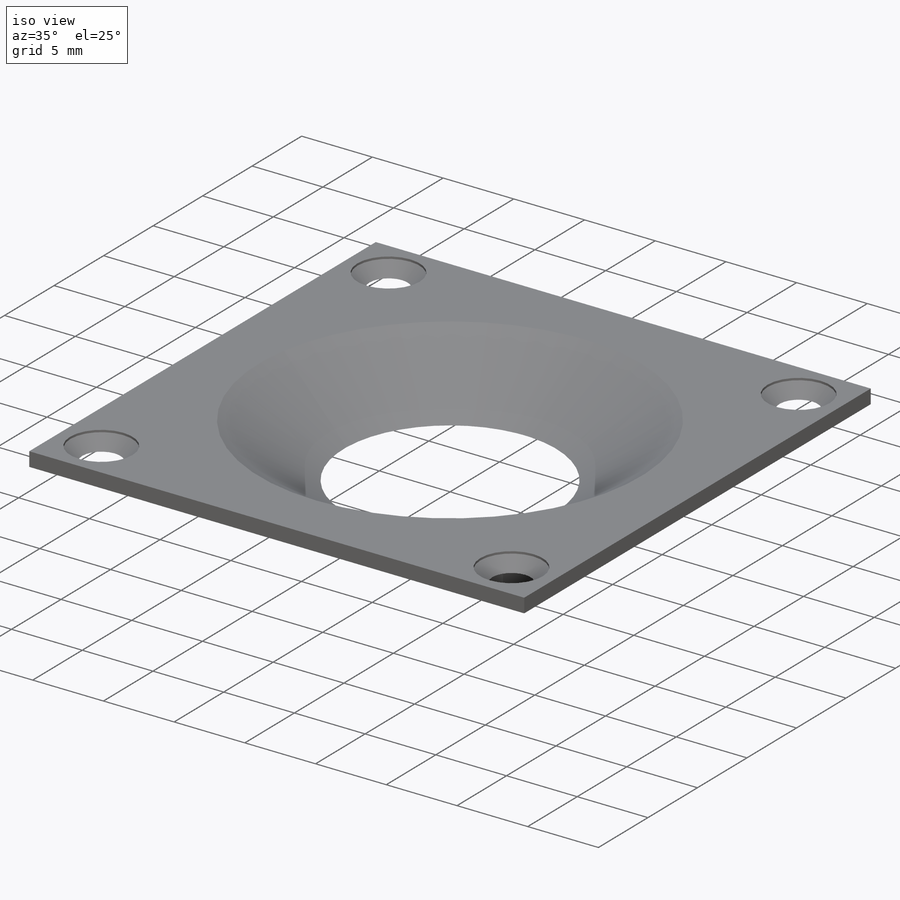
[diagram: iso view]
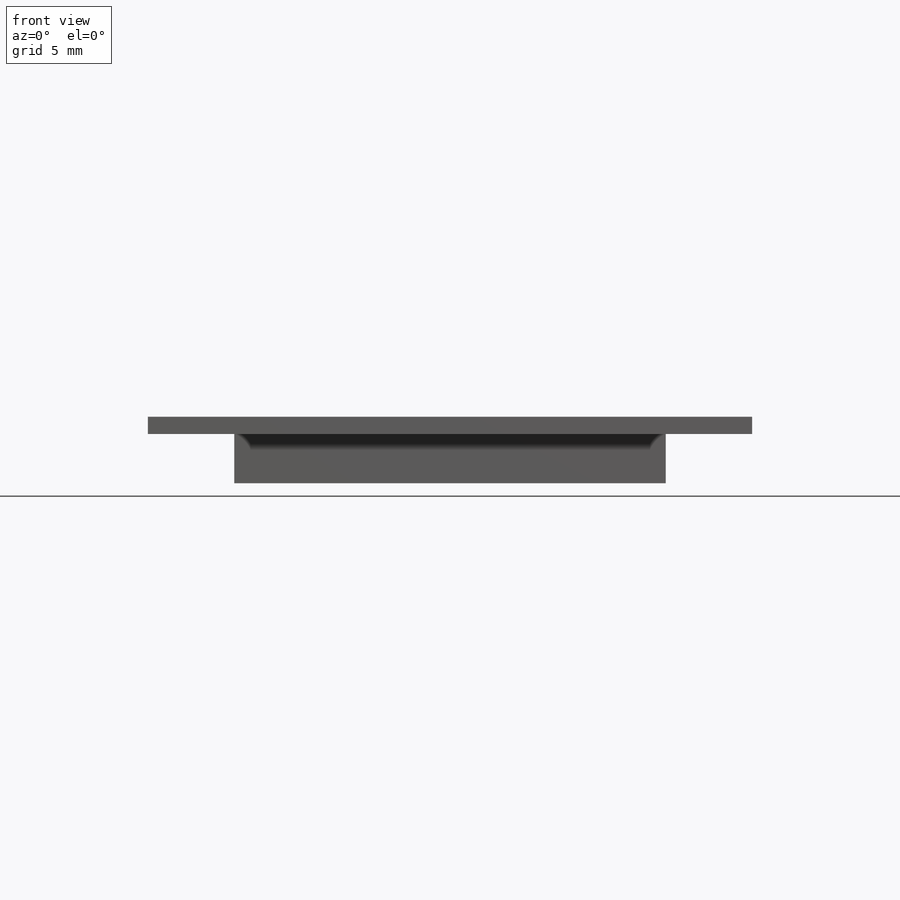
[diagram: front view]
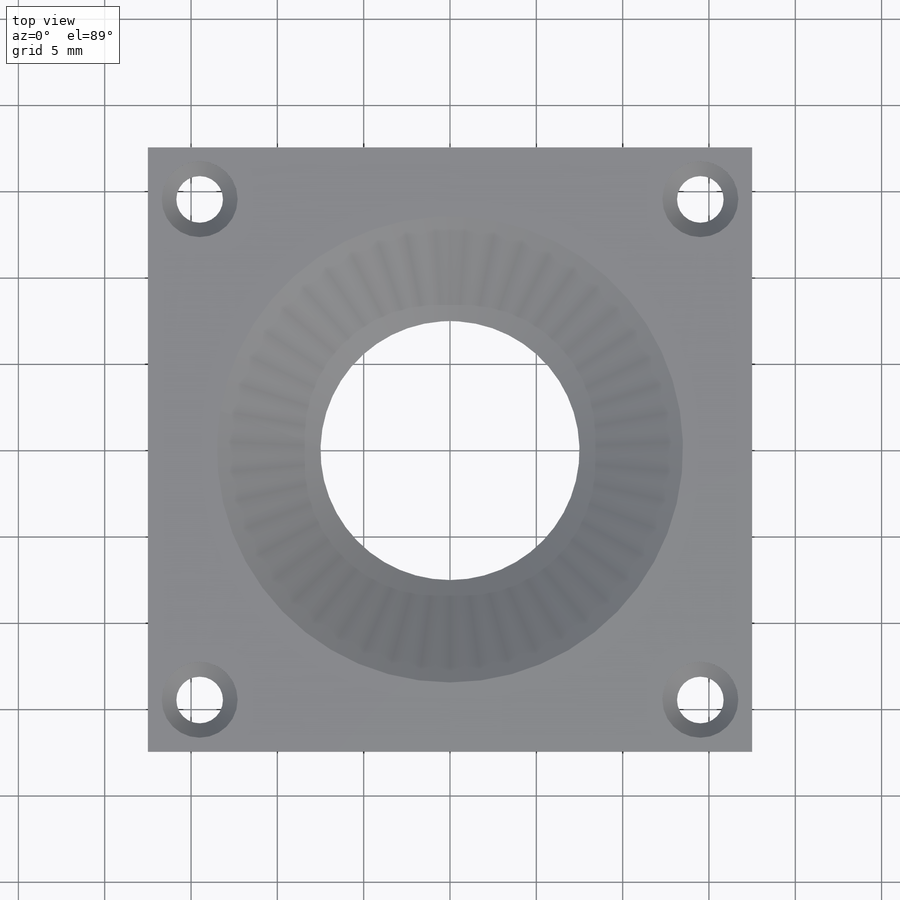
[diagram: top view]
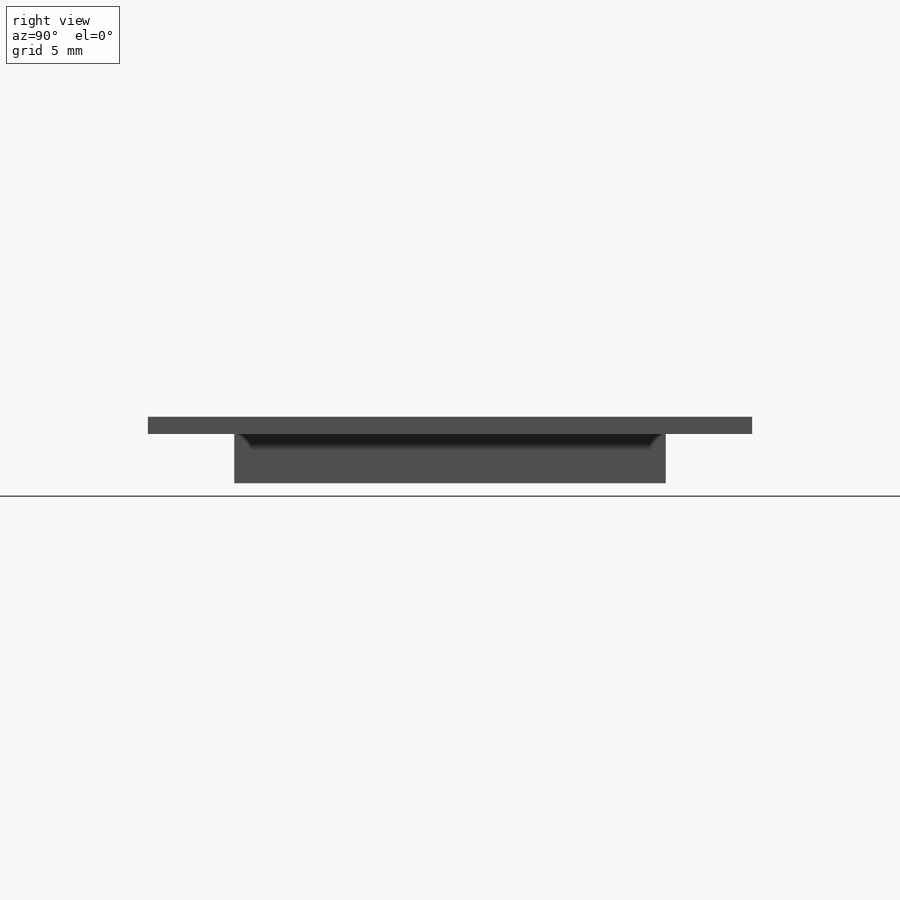
[diagram: right view]
SOLIDWORKS PART (.sldprt)
format: sldprt  version: not decoded by parser v0  size: 238,080 bytes
history: native  units: mm
features: sketch x5, extrude x2, material x1, cut_revolve x1, hole x1 (+13 scaffold rows collapsed)
feature tree (23):
  scaffold x13  (default folders/planes/origin — collapsed)
  material  "Material <not specified>"
  sketch  "Sketch1"  dims[D1=25.0mm]
  extrude  "Boss-Extrude1"  Depth=2.85mm
  sketch  "Sketch2"  dims[D1=5.0mm D2=5.0mm]
  extrude  "Boss-Extrude2"  Depth=1mm
  sketch  "Sketch3"  dims[D1=15.0mm D2=27.0mm D3=2.85mm]
  cut_revolve  "Cut-Revolve1"  Angle=360deg
  hole  "CSK for M2 Flat Head Machine Screw1"  Diameter=2.4mm Depth=10mm
  sketch  "Sketch5"  dims[D1=29.0mm D2=14.5mm]
  sketch  "Sketch4"  dims[hole-wizard template sketch: 31 standard entries collapsed; hole parameters kept: c10.Hole Dia.=2.4mm c10.Hole Depth=10.0mm c10.C'Sink Dia.=4.4mm c10.D4=~17.960512mm c10.C'Sink Angle=90.0deg c10.D5=~14.816244mm c10.Drill Angle=118.0deg c10.Head Clearance=0.15mm]
decode coverage: 9 of 9 modeling features carry decoded parameters
note: ~ marks probable driven/reference dimensions
note: suppression state not decoded; provenance and decode notes live in map.json
